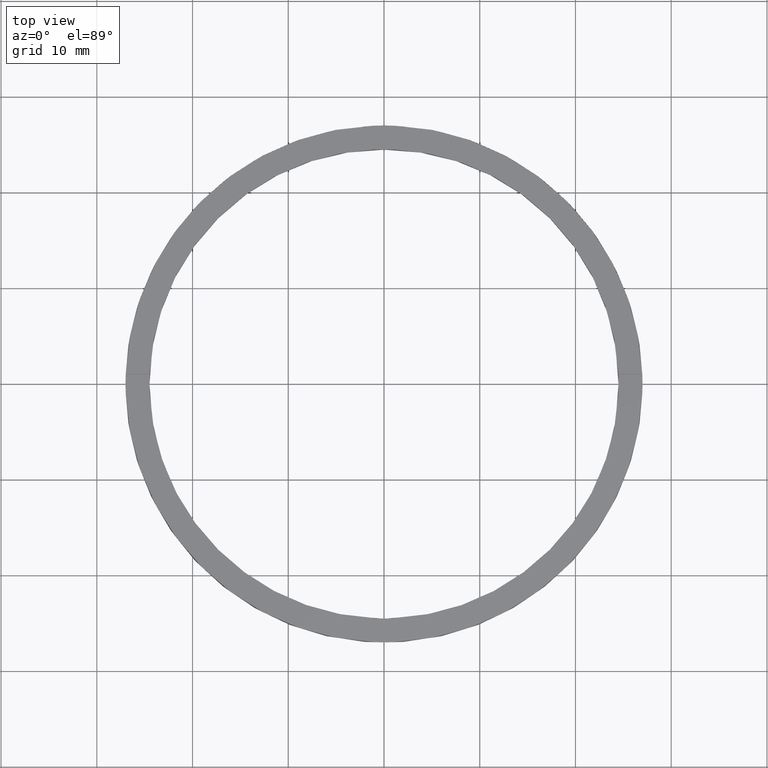
[diagram: clean part render]
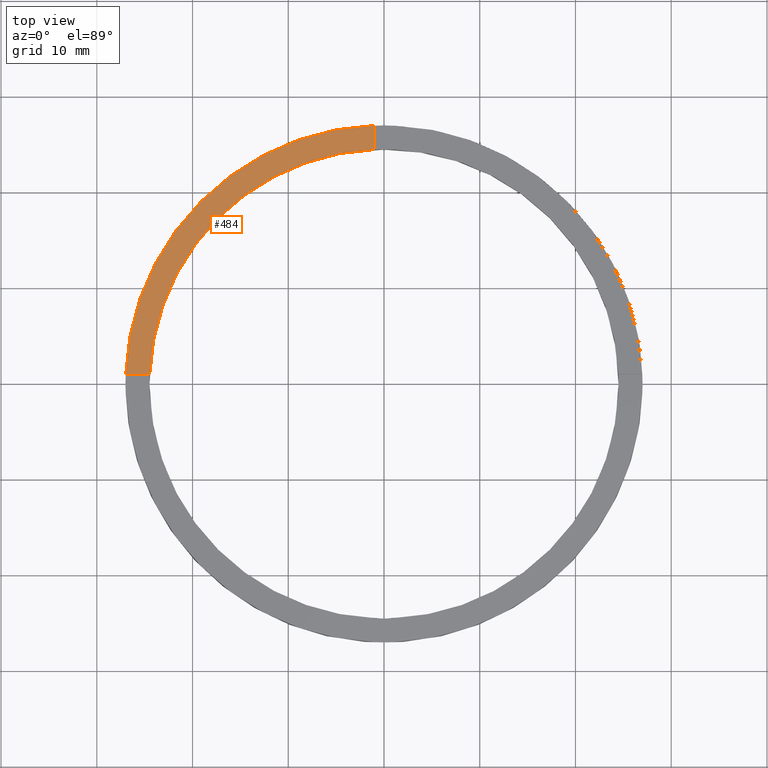
[diagram: same view with one face highlighted and labeled with its STEP entity id]
A machine part, top view. The second image highlights one B-rep face of the part: STEP entity #484.
In plain terms, the highlighted planar face has unit normal (0, 0, 1).
Its self-contained STEP definition (entity closure, byte-faithful):
#10 = ORIENTED_EDGE ( 'NONE', *, *, #400, .F. ) ;
#18 = DIRECTION ( 'NONE',  ( -0.000000000000000000, -1.000000000000000000, -0.000000000000000000 ) ) ;
#50 = CARTESIAN_POINT ( 'NONE',  ( 0.000000000000000000, 0.000000000000000000, 2.500000000000000000 ) ) ;
#52 = CARTESIAN_POINT ( 'NONE',  ( -1.000000000000026423, 17.00000000000000000, 2.500000000000000000 ) ) ;
#72 = ORIENTED_EDGE ( 'NONE', *, *, #513, .T. ) ;
#114 = AXIS2_PLACEMENT_3D ( 'NONE', #227, #373, #363 ) ;
#135 = FACE_OUTER_BOUND ( 'NONE', #473, .T. ) ;
#188 = CIRCLE ( 'NONE', #114, 27.00000000000000000 ) ;
#223 = CARTESIAN_POINT ( 'NONE',  ( 0.000000000000000000, 0.000000000000000000, 2.500000000000000000 ) ) ;
#227 = CARTESIAN_POINT ( 'NONE',  ( 0.000000000000000000, 0.000000000000000000, 2.500000000000000000 ) ) ;
#241 = EDGE_CURVE ( 'NONE', #444, #246, #412, .T. ) ;
#245 = CARTESIAN_POINT ( 'NONE',  ( -17.00000000000018474, 0.9999999999999751310, 2.500000000000000000 ) ) ;
#246 = VERTEX_POINT ( 'NONE', #265 ) ;
#260 = EDGE_CURVE ( 'NONE', #722, #716, #661, .T. ) ;
#265 = CARTESIAN_POINT ( 'NONE',  ( -1.000000000000026423, 24.47958332978729601, 2.500000000000000000 ) ) ;
#296 = DIRECTION ( 'NONE',  ( -1.000000000000000000, -1.734723475976807341E-16, 0.000000000000000000 ) ) ;
#316 = CARTESIAN_POINT ( 'NONE',  ( -26.98147512646408330, 0.9999999999999733546, 2.500000000000000000 ) ) ;
#334 = ORIENTED_EDGE ( 'NONE', *, *, #260, .F. ) ;
#341 = DIRECTION ( 'NONE',  ( 1.000000000000000000, 0.000000000000000000, 0.000000000000000000 ) ) ;
#363 = DIRECTION ( 'NONE',  ( 1.000000000000000000, 0.000000000000000000, 0.000000000000000000 ) ) ;
#373 = DIRECTION ( 'NONE',  ( 0.000000000000000000, 0.000000000000000000, 1.000000000000000000 ) ) ;
#399 = VECTOR ( 'NONE', #296, 1000.000000000000000 ) ;
#400 = EDGE_CURVE ( 'NONE', #246, #722, #674, .T. ) ;
#404 = VECTOR ( 'NONE', #18, 1000.000000000000000 ) ;
#412 = LINE ( 'NONE', #52, #404 ) ;
#444 = VERTEX_POINT ( 'NONE', #584 ) ;
#460 = ORIENTED_EDGE ( 'NONE', *, *, #241, .F. ) ;
#473 = EDGE_LOOP ( 'NONE', ( #460, #72, #334, #10 ) ) ;
#484 = ADVANCED_FACE ( 'NONE', ( #135 ), #555, .T. ) ;
#511 = DIRECTION ( 'NONE',  ( 1.000000000000000000, 0.000000000000000000, -0.000000000000000000 ) ) ;
#513 = EDGE_CURVE ( 'NONE', #444, #716, #188, .T. ) ;
#555 = PLANE ( 'NONE',  #569 ) ;
#562 = CARTESIAN_POINT ( 'NONE',  ( -24.47958332978729601, 0.9999999999999737987, 2.500000000000000000 ) ) ;
#569 = AXIS2_PLACEMENT_3D ( 'NONE', #223, #752, #511 ) ;
#584 = CARTESIAN_POINT ( 'NONE',  ( -1.000000000000026423, 26.98147512646407975, 2.500000000000000000 ) ) ;
#661 = LINE ( 'NONE', #245, #399 ) ;
#674 = CIRCLE ( 'NONE', #768, 24.50000000000000000 ) ;
#716 = VERTEX_POINT ( 'NONE', #316 ) ;
#722 = VERTEX_POINT ( 'NONE', #562 ) ;
#744 = DIRECTION ( 'NONE',  ( 0.000000000000000000, 0.000000000000000000, 1.000000000000000000 ) ) ;
#752 = DIRECTION ( 'NONE',  ( 0.000000000000000000, 0.000000000000000000, 1.000000000000000000 ) ) ;
#768 = AXIS2_PLACEMENT_3D ( 'NONE', #50, #744, #341 ) ;